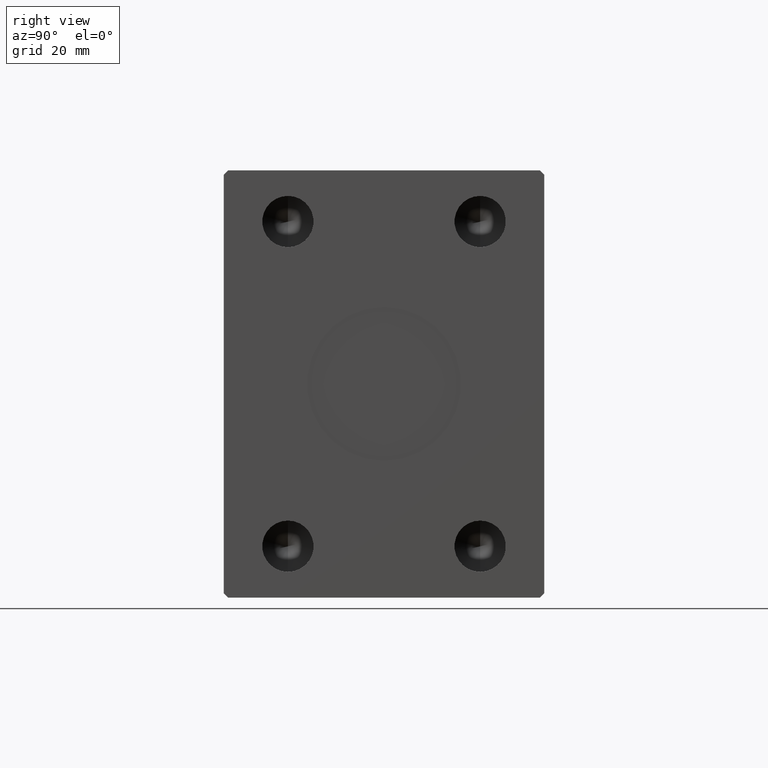
[diagram: clean part render]
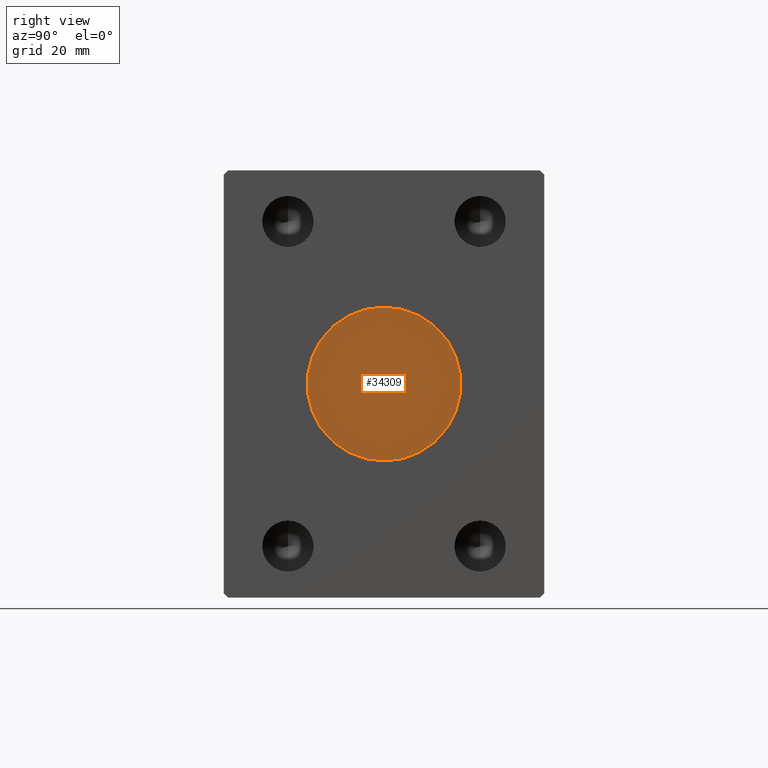
[diagram: same view with one face highlighted and labeled with its STEP entity id]
A machine part, right view. The second image highlights one B-rep face of the part: STEP entity #34309.
In plain terms, the highlighted planar face has unit normal (1, 0, 0).
Its self-contained STEP definition (entity closure, byte-faithful):
#1942 = AXIS2_PLACEMENT_3D ( 'NONE', #35291, #15251, #14370 ) ;
#5083 = DIRECTION ( 'NONE',  ( 1.000000000000000000, 0.000000000000000000, 0.000000000000000000 ) ) ;
#7522 = CARTESIAN_POINT ( 'NONE',  ( 106.7999999999999972, 0.000000000000000000, 0.000000000000000000 ) ) ;
#7947 = FACE_OUTER_BOUND ( 'NONE', #9439, .T. ) ;
#9439 = EDGE_LOOP ( 'NONE', ( #26758, #14822 ) ) ;
#10239 = EDGE_CURVE ( 'NONE', #43312, #11607, #12689, .T. ) ;
#11607 = VERTEX_POINT ( 'NONE', #17903 ) ;
#12689 = CIRCLE ( 'NONE', #1942, 18.00000000000000000 ) ;
#14370 = DIRECTION ( 'NONE',  ( 0.000000000000000000, 0.000000000000000000, -1.000000000000000000 ) ) ;
#14822 = ORIENTED_EDGE ( 'NONE', *, *, #10239, .T. ) ;
#15251 = DIRECTION ( 'NONE',  ( 1.000000000000000000, 0.000000000000000000, 0.000000000000000000 ) ) ;
#17350 = DIRECTION ( 'NONE',  ( 0.000000000000000000, 0.000000000000000000, -1.000000000000000000 ) ) ;
#17903 = CARTESIAN_POINT ( 'NONE',  ( 106.7999999999999972, 0.000000000000000000, -18.00000000000000000 ) ) ;
#19491 = CARTESIAN_POINT ( 'NONE',  ( 106.7999999999999972, 2.204364238465235428E-15, 18.00000000000000000 ) ) ;
#20701 = PLANE ( 'NONE',  #43958 ) ;
#23855 = AXIS2_PLACEMENT_3D ( 'NONE', #42285, #5083, #31810 ) ;
#26758 = ORIENTED_EDGE ( 'NONE', *, *, #30173, .T. ) ;
#30173 = EDGE_CURVE ( 'NONE', #11607, #43312, #42356, .T. ) ;
#31370 = DIRECTION ( 'NONE',  ( 1.000000000000000000, 0.000000000000000000, 0.000000000000000000 ) ) ;
#31810 = DIRECTION ( 'NONE',  ( 0.000000000000000000, 0.000000000000000000, -1.000000000000000000 ) ) ;
#34309 = ADVANCED_FACE ( 'NONE', ( #7947 ), #20701, .T. ) ;
#35291 = CARTESIAN_POINT ( 'NONE',  ( 106.7999999999999972, 0.000000000000000000, 0.000000000000000000 ) ) ;
#42285 = CARTESIAN_POINT ( 'NONE',  ( 106.7999999999999972, 0.000000000000000000, 0.000000000000000000 ) ) ;
#42356 = CIRCLE ( 'NONE', #23855, 18.00000000000000000 ) ;
#43312 = VERTEX_POINT ( 'NONE', #19491 ) ;
#43958 = AXIS2_PLACEMENT_3D ( 'NONE', #7522, #31370, #17350 ) ;